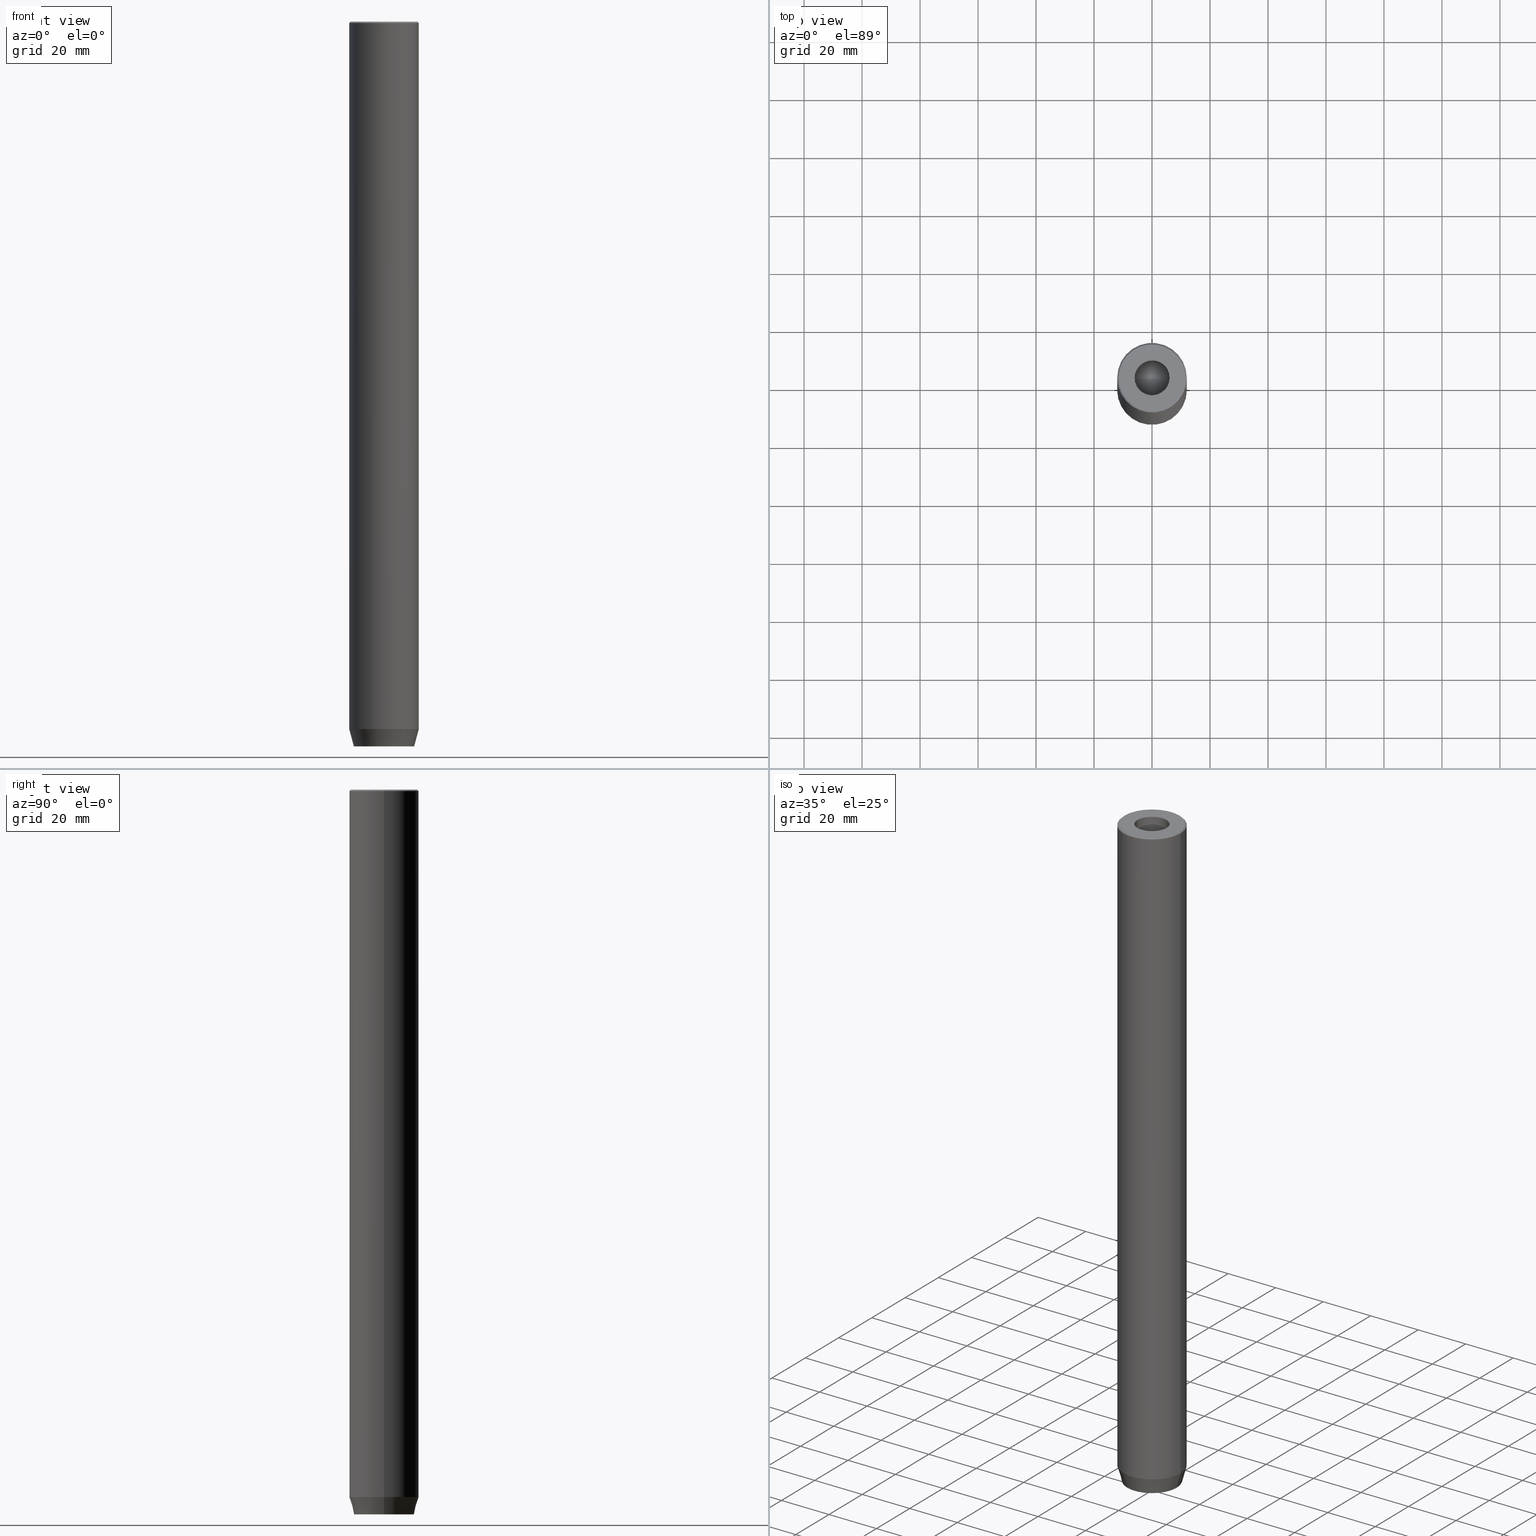
[diagram: canonical four-view strip — front | top / right | iso, engineering-drawing reading convention]
A machine part, canonical four-view strip (front | top / right | iso — engineering-drawing reading convention). The complete STEP part file that produces these views, byte-faithful:
ISO-10303-21;
HEADER;
FILE_DESCRIPTION (( 'STEP AP203' ),
    '1' );
FILE_NAME ('fc96.STEP',
    '2024-01-02T17:25:53',
    ( '' ),
    ( '' ),
    'SwSTEP 2.0',
    'SolidWorks 2019',
    '' );
FILE_SCHEMA (( 'CONFIG_CONTROL_DESIGN' ));
ENDSEC;

DATA;
#1 = APPLICATION_PROTOCOL_DEFINITION ( 'international standard', 'config_control_design', 1994, #552 ) ;
#2 = PLANE ( 'NONE',  #320 ) ;
#3 = EDGE_CURVE ( 'NONE', #21, #507, #478, .T. ) ;
#4 = DIRECTION ( 'NONE',  ( -0.000000000000000000, -0.000000000000000000, 1.000000000000000000 ) ) ;
#5 = VECTOR ( 'NONE', #132, 1000.000000000000000 ) ;
#6 = CARTESIAN_POINT ( 'NONE',  ( 0.000000000000000000, 0.000000000000000000, -244.0000000000000000 ) ) ;
#7 = DIRECTION ( 'NONE',  ( 1.000000000000000000, 0.000000000000000000, 0.000000000000000000 ) ) ;
#8 = DIRECTION ( 'NONE',  ( -0.000000000000000000, -0.000000000000000000, 1.000000000000000000 ) ) ;
#9 = DIRECTION ( 'NONE',  ( 1.000000000000000000, 0.000000000000000000, 0.000000000000000000 ) ) ;
#10 = LINE ( 'NONE', #543, #334 ) ;
#11 = LINE ( 'NONE', #150, #153 ) ;
#12 = ADVANCED_FACE ( 'NONE', ( #386, #379 ), #484, .T. ) ;
#13 = FACE_OUTER_BOUND ( 'NONE', #617, .T. ) ;
#14 = VERTEX_POINT ( 'NONE', #426 ) ;
#15 = DIRECTION ( 'NONE',  ( -0.2588190451025214056, 3.169619151431772953E-17, 0.9659258262890680902 ) ) ;
#16 = ADVANCED_FACE ( 'NONE', ( #285 ), #192, .F. ) ;
#17 = AXIS2_PLACEMENT_3D ( 'NONE', #446, #162, #455 ) ;
#18 = VECTOR ( 'NONE', #167, 999.9999999999998863 ) ;
#19 = ORIENTED_EDGE ( 'NONE', *, *, #500, .T. ) ;
#20 = CARTESIAN_POINT ( 'NONE',  ( 4.000000000000000000, -2.309401076758503368, -250.0000000000000000 ) ) ;
#21 = VERTEX_POINT ( 'NONE', #482 ) ;
#22 = DIRECTION ( 'NONE',  ( 1.000000000000000000, 0.000000000000000000, 0.000000000000000000 ) ) ;
#23 = ORIENTED_EDGE ( 'NONE', *, *, #633, .F. ) ;
#24 = EDGE_CURVE ( 'NONE', #406, #171, #44, .T. ) ;
#25 = AXIS2_PLACEMENT_3D ( 'NONE', #393, #111, #597 ) ;
#26 = AXIS2_PLACEMENT_3D ( 'NONE', #532, #288, #331 ) ;
#27 = VERTEX_POINT ( 'NONE', #374 ) ;
#28 = EDGE_CURVE ( 'NONE', #133, #460, #83, .T. ) ;
#29 = DIRECTION ( 'NONE',  ( -0.000000000000000000, -0.000000000000000000, -1.000000000000000000 ) ) ;
#30 = ORIENTED_EDGE ( 'NONE', *, *, #605, .T. ) ;
#31 = PERSON_AND_ORGANIZATION_ROLE ( 'classification_officer' ) ;
#32 = CARTESIAN_POINT ( 'NONE',  ( 4.000000000000000000, 2.309401076758504257, -250.0000000000000000 ) ) ;
#33 = LINE ( 'NONE', #465, #18 ) ;
#34 = ORIENTED_EDGE ( 'NONE', *, *, #115, .F. ) ;
#35 = DIRECTION ( 'NONE',  ( 1.000000000000000000, 0.000000000000000000, 0.000000000000000000 ) ) ;
#36 = CARTESIAN_POINT ( 'NONE',  ( -6.299999999999996270, 7.715274834628321433E-16, -0.2999999999999999889 ) ) ;
#37 = EDGE_LOOP ( 'NONE', ( #179, #274 ) ) ;
#38 = VECTOR ( 'NONE', #501, 1000.000000000000000 ) ;
#39 = ORIENTED_EDGE ( 'NONE', *, *, #118, .T. ) ;
#40 = CARTESIAN_POINT ( 'NONE',  ( 0.000000000000000000, 0.000000000000000000, -25.00000000000000000 ) ) ;
#41 = CARTESIAN_POINT ( 'NONE',  ( 2.000000000000000000, 3.464101615137755275, -244.1999999999999886 ) ) ;
#42 = ORIENTED_EDGE ( 'NONE', *, *, #407, .T. ) ;
#43 = DATE_AND_TIME ( #90, #347 ) ;
#44 = LINE ( 'NONE', #240, #610 ) ;
#45 = PERSON_AND_ORGANIZATION ( #442, #382 ) ;
#46 = DIRECTION ( 'NONE',  ( -0.000000000000000000, -0.000000000000000000, 1.000000000000000000 ) ) ;
#47 = AXIS2_PLACEMENT_3D ( 'NONE', #540, #57, #195 ) ;
#48 = CIRCLE ( 'NONE', #528, 6.299999999999996270 ) ;
#49 = VECTOR ( 'NONE', #343, 999.9999999999998863 ) ;
#50 = CARTESIAN_POINT ( 'NONE',  ( -6.299999999999996270, 7.715274834628322420E-16, 0.000000000000000000 ) ) ;
#51 = DIRECTION ( 'NONE',  ( -0.000000000000000000, -0.000000000000000000, 1.000000000000000000 ) ) ;
#52 = DIRECTION ( 'NONE',  ( -0.000000000000000000, -0.000000000000000000, 1.000000000000000000 ) ) ;
#53 = LINE ( 'NONE', #116, #66 ) ;
#54 = CARTESIAN_POINT ( 'NONE',  ( -4.000000000000000888, 1.502314598737159623E-15, -250.0000000000000000 ) ) ;
#55 = CIRCLE ( 'NONE', #412, 10.39230484541325872 ) ;
#56 = FACE_OUTER_BOUND ( 'NONE', #622, .T. ) ;
#57 = DIRECTION ( 'NONE',  ( 0.000000000000000000, 0.000000000000000000, -1.000000000000000000 ) ) ;
#58 = AXIS2_PLACEMENT_3D ( 'NONE', #294, #437, #348 ) ;
#59 =( NAMED_UNIT ( * ) SI_UNIT ( $, .STERADIAN. ) SOLID_ANGLE_UNIT ( ) );
#60 = DIRECTION ( 'NONE',  ( -0.000000000000000000, -0.000000000000000000, 1.000000000000000000 ) ) ;
#61 = FACE_OUTER_BOUND ( 'NONE', #474, .T. ) ;
#62 = DIRECTION ( 'NONE',  ( 0.000000000000000000, 0.000000000000000000, 1.000000000000000000 ) ) ;
#63 = ORIENTED_EDGE ( 'NONE', *, *, #403, .F. ) ;
#64 = FACE_OUTER_BOUND ( 'NONE', #627, .T. ) ;
#65 = ORIENTED_EDGE ( 'NONE', *, *, #261, .F. ) ;
#66 = VECTOR ( 'NONE', #260, 999.9999999999998863 ) ;
#67 = ORIENTED_EDGE ( 'NONE', *, *, #306, .F. ) ;
#68 = EDGE_CURVE ( 'NONE', #262, #27, #394, .T. ) ;
#69 = ORIENTED_EDGE ( 'NONE', *, *, #560, .F. ) ;
#70 = EDGE_LOOP ( 'NONE', ( #137, #176, #456, #363, #377, #127 ) ) ;
#71 = CARTESIAN_POINT ( 'NONE',  ( -4.000000000000000000, 2.309401076758504257, -244.1999999999999886 ) ) ;
#72 = ADVANCED_FACE ( 'NONE', ( #144 ), #519, .T. ) ;
#73 = VECTOR ( 'NONE', #345, 1000.000000000000000 ) ;
#74 = CARTESIAN_POINT ( 'NONE',  ( -4.000000000000000000, 2.309401076758504257, -250.0000000000000000 ) ) ;
#75 = VECTOR ( 'NONE', #445, 1000.000000000000000 ) ;
#76 = ORIENTED_EDGE ( 'NONE', *, *, #518, .T. ) ;
#77 = ADVANCED_FACE ( 'NONE', ( #246 ), #376, .T. ) ;
#78 = ORIENTED_EDGE ( 'NONE', *, *, #605, .F. ) ;
#79 = DIRECTION ( 'NONE',  ( 1.000000000000000000, 0.000000000000000000, 0.000000000000000000 ) ) ;
#80 = VERTEX_POINT ( 'NONE', #235 ) ;
#81 = CARTESIAN_POINT ( 'NONE',  ( 4.000000000000000000, 0.000000000000000000, -244.1999999999999886 ) ) ;
#82 = ADVANCED_FACE ( 'NONE', ( #337 ), #344, .F. ) ;
#83 = CIRCLE ( 'NONE', #467, 0.2999999999999999334 ) ;
#84 = EDGE_LOOP ( 'NONE', ( #559, #286, #570, #23, #530, #233 ) ) ;
#85 = CC_DESIGN_APPROVAL ( #526, ( #459 ) ) ;
#86 = FACE_OUTER_BOUND ( 'NONE', #371, .T. ) ;
#87 = CARTESIAN_POINT ( 'NONE',  ( 0.000000000000000000, 0.000000000000000000, 0.000000000000000000 ) ) ;
#88 = CC_DESIGN_PERSON_AND_ORGANIZATION_ASSIGNMENT ( #493, #196, ( #166 ) ) ;
#89 = ORIENTED_EDGE ( 'NONE', *, *, #177, .T. ) ;
#90 = CALENDAR_DATE ( 2024, 2, 1 ) ;
#91 = DIRECTION ( 'NONE',  ( 0.5000000000000000000, -0.8660254037844387076, 0.000000000000000000 ) ) ;
#92 = APPROVAL_STATUS ( 'not_yet_approved' ) ;
#93 = DIRECTION ( 'NONE',  ( -0.000000000000000000, -0.000000000000000000, 1.000000000000000000 ) ) ;
#94 = DIRECTION ( 'NONE',  ( 1.000000000000000000, 0.000000000000000000, -0.000000000000000000 ) ) ;
#95 = ORIENTED_EDGE ( 'NONE', *, *, #338, .T. ) ;
#96 = CALENDAR_DATE ( 2024, 2, 1 ) ;
#97 = DIRECTION ( 'NONE',  ( 0.000000000000000000, 0.000000000000000000, -1.000000000000000000 ) ) ;
#98 = APPLICATION_PROTOCOL_DEFINITION ( 'international standard', 'config_control_design', 1994, #425 ) ;
#99 = DIRECTION ( 'NONE',  ( -1.000000000000000000, 3.755786496842898071E-16, 0.000000000000000000 ) ) ;
#100 = VECTOR ( 'NONE', #494, 1000.000000000000000 ) ;
#101 = CIRCLE ( 'NONE', #254, 5.999999999999995559 ) ;
#102 = DIRECTION ( 'NONE',  ( 1.000000000000000000, 0.000000000000000000, 0.000000000000000000 ) ) ;
#103 = CARTESIAN_POINT ( 'NONE',  ( -11.50000000000000888, 0.000000000000000000, 0.000000000000000000 ) ) ;
#104 = CARTESIAN_POINT ( 'NONE',  ( -4.000000000000001776, -2.309401076758503368, -250.0000000000000000 ) ) ;
#105 = CYLINDRICAL_SURFACE ( 'NONE', #476, 12.00000000000000000 ) ;
#106 = FACE_OUTER_BOUND ( 'NONE', #470, .T. ) ;
#107 = LINE ( 'NONE', #258, #73 ) ;
#108 = CARTESIAN_POINT ( 'NONE',  ( -4.000000000000000888, 1.502314598737159623E-15, -244.1999999999999886 ) ) ;
#109 = AXIS2_PLACEMENT_3D ( 'NONE', #296, #204, #307 ) ;
#110 = FACE_OUTER_BOUND ( 'NONE', #606, .T. ) ;
#111 = DIRECTION ( 'NONE',  ( 0.000000000000000000, 0.000000000000000000, -1.000000000000000000 ) ) ;
#112 = CC_DESIGN_APPROVAL ( #613, ( #490 ) ) ;
#113 = EDGE_CURVE ( 'NONE', #460, #234, #241, .T. ) ;
#114 = CARTESIAN_POINT ( 'NONE',  ( 4.000000000000000000, -2.309401076758503368, -244.1999999999999886 ) ) ;
#115 = EDGE_CURVE ( 'NONE', #171, #534, #441, .T. ) ;
#116 = CARTESIAN_POINT ( 'NONE',  ( 2.000000000000000000, 3.464101615137755275, -250.0000000000000000 ) ) ;
#117 = ORIENTED_EDGE ( 'NONE', *, *, #633, .T. ) ;
#118 = EDGE_CURVE ( 'NONE', #561, #362, #146, .T. ) ;
#119 = ORIENTED_EDGE ( 'NONE', *, *, #594, .T. ) ;
#120 = EDGE_CURVE ( 'NONE', #327, #133, #449, .T. ) ;
#121 = AXIS2_PLACEMENT_3D ( 'NONE', #41, #431, #325 ) ;
#122 = AXIS2_PLACEMENT_3D ( 'NONE', #447, #4, #598 ) ;
#123 = ORIENTED_EDGE ( 'NONE', *, *, #316, .T. ) ;
#124 = ORIENTED_EDGE ( 'NONE', *, *, #324, .T. ) ;
#125 = LINE ( 'NONE', #369, #163 ) ;
#126 = APPROVAL ( #295, 'NEUR�EN�' ) ;
#127 = ORIENTED_EDGE ( 'NONE', *, *, #453, .T. ) ;
#128 = VECTOR ( 'NONE', #502, 999.9999999999998863 ) ;
#129 = TOROIDAL_SURFACE ( 'NONE', #26, 6.299999999999996270, 0.2999999999999999889 ) ;
#130 = ORIENTED_EDGE ( 'NONE', *, *, #410, .F. ) ;
#131 = CARTESIAN_POINT ( 'NONE',  ( 0.000000000000000000, 0.000000000000000000, 0.000000000000000000 ) ) ;
#132 = DIRECTION ( 'NONE',  ( 0.2588190451025214056, 0.000000000000000000, 0.9659258262890680902 ) ) ;
#133 = VERTEX_POINT ( 'NONE', #50 ) ;
#134 = DIRECTION ( 'NONE',  ( 1.000000000000000000, 0.000000000000000000, 0.000000000000000000 ) ) ;
#135 = ADVANCED_FACE ( 'NONE', ( #636 ), #529, .F. ) ;
#136 = CARTESIAN_POINT ( 'NONE',  ( -1.999999999999999112, -3.464101615137755275, -244.1999999999999886 ) ) ;
#137 = ORIENTED_EDGE ( 'NONE', *, *, #201, .T. ) ;
#138 = DATE_TIME_ROLE ( 'classification_date' ) ;
#139 = CARTESIAN_POINT ( 'NONE',  ( 0.000000000000000000, 0.000000000000000000, -244.1999999999999886 ) ) ;
#140 = CONICAL_SURFACE ( 'NONE', #358, 12.00000000000000000, 0.2617993877991501295 ) ;
#141 = ORIENTED_EDGE ( 'NONE', *, *, #387, .T. ) ;
#142 =( GEOMETRIC_REPRESENTATION_CONTEXT ( 3 ) GLOBAL_UNCERTAINTY_ASSIGNED_CONTEXT ( ( #595 ) ) GLOBAL_UNIT_ASSIGNED_CONTEXT ( ( #310, #197, #59 ) ) REPRESENTATION_CONTEXT ( 'NONE', 'WORKASPACE' ) );
#143 = MECHANICAL_CONTEXT ( 'NONE', #552, 'mechanical' ) ;
#144 = FACE_OUTER_BOUND ( 'NONE', #231, .T. ) ;
#145 = ORIENTED_EDGE ( 'NONE', *, *, #518, .F. ) ;
#146 = LINE ( 'NONE', #289, #5 ) ;
#147 = DATE_AND_TIME ( #637, #499 ) ;
#148 = CC_DESIGN_DATE_AND_TIME_ASSIGNMENT ( #238, #138, ( #459 ) ) ;
#149 = LINE ( 'NONE', #248, #75 ) ;
#150 = CARTESIAN_POINT ( 'NONE',  ( 1.999999999999999556, -3.464101615137754386, -244.1999999999999886 ) ) ;
#151 = EDGE_CURVE ( 'NONE', #362, #564, #569, .T. ) ;
#152 = SECURITY_CLASSIFICATION_LEVEL ( 'unclassified' ) ;
#153 = VECTOR ( 'NONE', #341, 1000.000000000000227 ) ;
#154 = AXIS2_PLACEMENT_3D ( 'NONE', #392, #51, #588 ) ;
#155 = CARTESIAN_POINT ( 'NONE',  ( 2.000000000000000000, 3.464101615137755275, -244.1999999999999886 ) ) ;
#156 = DIRECTION ( 'NONE',  ( 1.000000000000000000, 0.000000000000000000, 0.000000000000000000 ) ) ;
#157 = LINE ( 'NONE', #354, #49 ) ;
#158 = LINE ( 'NONE', #305, #207 ) ;
#159 = CARTESIAN_POINT ( 'NONE',  ( -4.000000000000000000, 2.309401076758504257, -244.1999999999999886 ) ) ;
#160 = CYLINDRICAL_SURFACE ( 'NONE', #364, 5.999999999999996447 ) ;
#161 = CONICAL_SURFACE ( 'NONE', #25, 11.50000000000000888, 0.7853981633974344012 ) ;
#162 = DIRECTION ( 'NONE',  ( -0.000000000000000000, -0.000000000000000000, 1.000000000000000000 ) ) ;
#163 = VECTOR ( 'NONE', #29, 1000.000000000000000 ) ;
#164 = ORIENTED_EDGE ( 'NONE', *, *, #319, .T. ) ;
#165 = ORIENTED_EDGE ( 'NONE', *, *, #315, .T. ) ;
#166 = PRODUCT_DEFINITION ( 'NEZN�M�', '', #490, #255 ) ;
#167 = DIRECTION ( 'NONE',  ( 0.7071067811865376918, 8.659560562354813296E-17, -0.7071067811865574537 ) ) ;
#168 = EDGE_LOOP ( 'NONE', ( #409, #19, #483, #145 ) ) ;
#169 = VECTOR ( 'NONE', #553, 1000.000000000000000 ) ;
#170 = ORIENTED_EDGE ( 'NONE', *, *, #151, .F. ) ;
#171 = VERTEX_POINT ( 'NONE', #451 ) ;
#172 = ORIENTED_EDGE ( 'NONE', *, *, #500, .F. ) ;
#173 = AXIS2_PLACEMENT_3D ( 'NONE', #210, #250, #200 ) ;
#174 = AXIS2_PLACEMENT_3D ( 'NONE', #452, #62, #444 ) ;
#175 = DIRECTION ( 'NONE',  ( 0.000000000000000000, -1.000000000000000000, 0.000000000000000000 ) ) ;
#176 = ORIENTED_EDGE ( 'NONE', *, *, #549, .T. ) ;
#177 = EDGE_CURVE ( 'NONE', #427, #460, #107, .T. ) ;
#178 = DIRECTION ( 'NONE',  ( -0.000000000000000000, -0.000000000000000000, -1.000000000000000000 ) ) ;
#179 = ORIENTED_EDGE ( 'NONE', *, *, #560, .T. ) ;
#180 = FACE_OUTER_BOUND ( 'NONE', #504, .T. ) ;
#181 = ADVANCED_FACE ( 'NONE', ( #558 ), #160, .F. ) ;
#182 = DIRECTION ( 'NONE',  ( 1.224646799147353207E-16, 1.000000000000000000, 0.000000000000000000 ) ) ;
#183 = ORIENTED_EDGE ( 'NONE', *, *, #118, .F. ) ;
#184 = DIRECTION ( 'NONE',  ( 0.000000000000000000, 0.000000000000000000, -1.000000000000000000 ) ) ;
#185 = MANIFOLD_SOLID_BREP ( 'Odebrat vysunut�m1', #253 ) ;
#186 = PRODUCT_DEFINITION_SHAPE ( 'NONE', 'NONE',  #166 ) ;
#187 = ORIENTED_EDGE ( 'NONE', *, *, #201, .F. ) ;
#188 = AXIS2_PLACEMENT_3D ( 'NONE', #349, #414, #102 ) ;
#189 = DIRECTION ( 'NONE',  ( 1.000000000000000000, 0.000000000000000000, 0.000000000000000000 ) ) ;
#190 = ADVANCED_FACE ( 'NONE', ( #301, #64 ), #506, .T. ) ;
#191 = FACE_OUTER_BOUND ( 'NONE', #361, .T. ) ;
#192 = PLANE ( 'NONE',  #263 ) ;
#193 = COORDINATED_UNIVERSAL_TIME_OFFSET ( 1, 0, .AHEAD. ) ;
#194 = CARTESIAN_POINT ( 'NONE',  ( 5.999999999999995559, 0.000000000000000000, -25.00000000000000000 ) ) ;
#195 = DIRECTION ( 'NONE',  ( -1.000000000000000000, 0.000000000000000000, -0.000000000000000000 ) ) ;
#196 = PERSON_AND_ORGANIZATION_ROLE ( 'creator' ) ;
#197 =( NAMED_UNIT ( * ) PLANE_ANGLE_UNIT ( ) SI_UNIT ( $, .RADIAN. ) );
#198 = CARTESIAN_POINT ( 'NONE',  ( 8.673617379884035472E-16, -4.618802153517004960, -244.1999999999999886 ) ) ;
#199 = CARTESIAN_POINT ( 'NONE',  ( -4.000000000000000888, 1.502314598737159623E-15, -244.1999999999999886 ) ) ;
#200 = DIRECTION ( 'NONE',  ( 0.000000000000000000, 0.000000000000000000, -1.000000000000000000 ) ) ;
#201 = EDGE_CURVE ( 'NONE', #479, #14, #356, .T. ) ;
#202 = CYLINDRICAL_SURFACE ( 'NONE', #581, 12.00000000000000000 ) ;
#203 = CARTESIAN_POINT ( 'NONE',  ( 0.000000000000000000, 0.000000000000000000, 0.000000000000000000 ) ) ;
#204 = DIRECTION ( 'NONE',  ( -0.4999999999999999445, 0.8660254037844387076, 0.000000000000000000 ) ) ;
#205 = ADVANCED_FACE ( 'NONE', ( #601 ), #105, .T. ) ;
#206 = VERTEX_POINT ( 'NONE', #448 ) ;
#207 = VECTOR ( 'NONE', #589, 1000.000000000000000 ) ;
#208 = CARTESIAN_POINT ( 'NONE',  ( 4.000000000000000000, 2.309401076758504257, -244.1999999999999886 ) ) ;
#209 = VECTOR ( 'NONE', #264, 999.9999999999998863 ) ;
#210 = CARTESIAN_POINT ( 'NONE',  ( 6.299999999999996270, 0.000000000000000000, -0.2999999999999999889 ) ) ;
#211 = CC_DESIGN_PERSON_AND_ORGANIZATION_ASSIGNMENT ( #503, #31, ( #459 ) ) ;
#212 = ORIENTED_EDGE ( 'NONE', *, *, #410, .T. ) ;
#213 = EDGE_CURVE ( 'NONE', #206, #564, #492, .T. ) ;
#214 = VERTEX_POINT ( 'NONE', #103 ) ;
#215 = CARTESIAN_POINT ( 'NONE',  ( 0.000000000000000000, 0.000000000000000000, -0.2999999999999999889 ) ) ;
#216 = ORIENTED_EDGE ( 'NONE', *, *, #28, .F. ) ;
#217 = FACE_OUTER_BOUND ( 'NONE', #373, .T. ) ;
#218 = AXIS2_PLACEMENT_3D ( 'NONE', #360, #52, #9 ) ;
#219 = CARTESIAN_POINT ( 'NONE',  ( 0.000000000000000000, 0.000000000000000000, -250.0000000000000000 ) ) ;
#220 = ORIENTED_EDGE ( 'NONE', *, *, #316, .F. ) ;
#221 = ADVANCED_FACE ( 'NONE', ( #400 ), #140, .T. ) ;
#222 = LINE ( 'NONE', #568, #265 ) ;
#223 = ORIENTED_EDGE ( 'NONE', *, *, #239, .T. ) ;
#224 = DIRECTION ( 'NONE',  ( 1.000000000000000000, 0.000000000000000000, 0.000000000000000000 ) ) ;
#225 = VERTEX_POINT ( 'NONE', #402 ) ;
#226 = CARTESIAN_POINT ( 'NONE',  ( 0.000000000000000000, 0.000000000000000000, -0.5000000000000056621 ) ) ;
#227 = CARTESIAN_POINT ( 'NONE',  ( 0.000000000000000000, 0.000000000000000000, 0.000000000000000000 ) ) ;
#228 = AXIS2_PLACEMENT_3D ( 'NONE', #524, #328, #279 ) ;
#229 = APPROVAL_PERSON_ORGANIZATION ( #340, #613, #535 ) ;
#230 = ADVANCED_FACE ( 'NONE', ( #249 ), #554, .F. ) ;
#231 = EDGE_LOOP ( 'NONE', ( #78, #69, #521, #612 ) ) ;
#232 = LINE ( 'NONE', #423, #591 ) ;
#233 = ORIENTED_EDGE ( 'NONE', *, *, #251, .F. ) ;
#234 = VERTEX_POINT ( 'NONE', #495 ) ;
#235 = CARTESIAN_POINT ( 'NONE',  ( 11.50000000000000888, 1.438959988998140752E-15, 0.000000000000000000 ) ) ;
#236 = ORIENTED_EDGE ( 'NONE', *, *, #239, .F. ) ;
#237 = DATE_TIME_ROLE ( 'creation_date' ) ;
#238 = DATE_AND_TIME ( #439, #365 ) ;
#239 = EDGE_CURVE ( 'NONE', #564, #362, #293, .T. ) ;
#240 = CARTESIAN_POINT ( 'NONE',  ( -1.999999999999999112, -3.464101615137755275, -244.1999999999999886 ) ) ;
#241 = CIRCLE ( 'NONE', #346, 5.999999999999996447 ) ;
#242 = CC_DESIGN_APPROVAL ( #126, ( #166 ) ) ;
#243 = PERSON_AND_ORGANIZATION_ROLE ( 'creator' ) ;
#244 = COORDINATED_UNIVERSAL_TIME_OFFSET ( 1, 0, .AHEAD. ) ;
#245 = CARTESIAN_POINT ( 'NONE',  ( 0.000000000000000000, 0.000000000000000000, -244.0000000000000000 ) ) ;
#246 = FACE_OUTER_BOUND ( 'NONE', #70, .T. ) ;
#247 = DIRECTION ( 'NONE',  ( -3.755786496842898071E-16, -1.000000000000000000, 0.000000000000000000 ) ) ;
#248 = CARTESIAN_POINT ( 'NONE',  ( 4.000000000000000000, 0.000000000000000000, -244.1999999999999886 ) ) ;
#249 = FACE_OUTER_BOUND ( 'NONE', #415, .T. ) ;
#250 = DIRECTION ( 'NONE',  ( 0.000000000000000000, -1.000000000000000000, 0.000000000000000000 ) ) ;
#251 = EDGE_CURVE ( 'NONE', #515, #417, #53, .T. ) ;
#252 = PRODUCT_RELATED_PRODUCT_CATEGORY ( 'detail', '', ( #282 ) ) ;
#253 = CLOSED_SHELL ( 'NONE', ( #429, #181, #537, #266, #505, #205, #190, #12, #516, #221, #72, #350, #380, #609, #230, #357, #82, #308, #16, #135, #77 ) ) ;
#254 = AXIS2_PLACEMENT_3D ( 'NONE', #40, #93, #430 ) ;
#255 = DESIGN_CONTEXT ( 'detailed design', #425, 'design' ) ;
#256 = CARTESIAN_POINT ( 'NONE',  ( -12.00000000000000000, 1.469576158976823947E-15, -244.0000000000000000 ) ) ;
#257 = DIRECTION ( 'NONE',  ( -0.8660254037844387076, 0.4999999999999997224, 0.000000000000000000 ) ) ;
#258 = CARTESIAN_POINT ( 'NONE',  ( -5.999999999999996447, 7.347880794884115792E-16, 0.000000000000000000 ) ) ;
#259 = ORIENTED_EDGE ( 'NONE', *, *, #461, .T. ) ;
#260 = DIRECTION ( 'NONE',  ( 0.8660254037844387076, -0.4999999999999999445, 0.000000000000000000 ) ) ;
#261 = EDGE_CURVE ( 'NONE', #80, #214, #420, .T. ) ;
#262 = VERTEX_POINT ( 'NONE', #639 ) ;
#263 = AXIS2_PLACEMENT_3D ( 'NONE', #81, #94, #586 ) ;
#264 = DIRECTION ( 'NONE',  ( -0.7071067811865376918, 0.000000000000000000, -0.7071067811865574537 ) ) ;
#265 = VECTOR ( 'NONE', #418, 1000.000000000000227 ) ;
#266 = ADVANCED_FACE ( 'NONE', ( #61 ), #161, .T. ) ;
#267 = ORIENTED_EDGE ( 'NONE', *, *, #213, .F. ) ;
#268 = EDGE_CURVE ( 'NONE', #327, #234, #603, .T. ) ;
#269 = ORIENTED_EDGE ( 'NONE', *, *, #315, .F. ) ;
#270 = CARTESIAN_POINT ( 'NONE',  ( -11.50000000000000888, 0.000000000000000000, 0.000000000000000000 ) ) ;
#271 = ORIENTED_EDGE ( 'NONE', *, *, #298, .F. ) ;
#272 = VECTOR ( 'NONE', #399, 1000.000000000000000 ) ;
#273 = VECTOR ( 'NONE', #401, 1000.000000000000000 ) ;
#274 = ORIENTED_EDGE ( 'NONE', *, *, #261, .T. ) ;
#275 = ORIENTED_EDGE ( 'NONE', *, *, #387, .F. ) ;
#276 = DIRECTION ( 'NONE',  ( 0.8660254037844385966, 0.4999999999999999445, 0.000000000000000000 ) ) ;
#277 = DIRECTION ( 'NONE',  ( -0.8660254037844387076, 0.4999999999999997224, 0.000000000000000000 ) ) ;
#278 = ORIENTED_EDGE ( 'NONE', *, *, #68, .F. ) ;
#279 = DIRECTION ( 'NONE',  ( 1.000000000000000000, 0.000000000000000000, 0.000000000000000000 ) ) ;
#280 = DIRECTION ( 'NONE',  ( 1.000000000000000000, 0.000000000000000000, 0.000000000000000000 ) ) ;
#281 = VECTOR ( 'NONE', #178, 1000.000000000000000 ) ;
#282 = PRODUCT ( 'fc96', 'fc96', '', ( #143 ) ) ;
#283 = ORIENTED_EDGE ( 'NONE', *, *, #251, .T. ) ;
#284 = CARTESIAN_POINT ( 'NONE',  ( 1.999999999999999556, -3.464101615137754386, -244.1999999999999886 ) ) ;
#285 = FACE_OUTER_BOUND ( 'NONE', #575, .T. ) ;
#286 = ORIENTED_EDGE ( 'NONE', *, *, #407, .F. ) ;
#287 = LINE ( 'NONE', #472, #580 ) ;
#288 = DIRECTION ( 'NONE',  ( -0.000000000000000000, -0.000000000000000000, 1.000000000000000000 ) ) ;
#289 = CARTESIAN_POINT ( 'NONE',  ( 12.00000000000000000, 0.000000000000000000, -244.0000000000000000 ) ) ;
#290 = ORIENTED_EDGE ( 'NONE', *, *, #549, .F. ) ;
#291 = APPROVAL_DATE_TIME ( #590, #613 ) ;
#292 = DIRECTION ( 'NONE',  ( 0.000000000000000000, -0.000000000000000000, 1.000000000000000000 ) ) ;
#293 = CIRCLE ( 'NONE', #218, 12.00000000000000000 ) ;
#294 = CARTESIAN_POINT ( 'NONE',  ( 0.000000000000000000, 0.000000000000000000, 0.000000000000000000 ) ) ;
#295 = APPROVAL_STATUS ( 'not_yet_approved' ) ;
#296 = CARTESIAN_POINT ( 'NONE',  ( -2.000000000000000000, 3.464101615137755275, -244.1999999999999886 ) ) ;
#297 = DIRECTION ( 'NONE',  ( -0.000000000000000000, -0.000000000000000000, 1.000000000000000000 ) ) ;
#298 = EDGE_CURVE ( 'NONE', #21, #427, #158, .T. ) ;
#299 = PERSON_AND_ORGANIZATION_ROLE ( 'design_owner' ) ;
#300 = LINE ( 'NONE', #54, #273 ) ;
#301 = FACE_BOUND ( 'NONE', #84, .T. ) ;
#302 = CARTESIAN_POINT ( 'NONE',  ( 12.00000000000000000, 0.000000000000000000, -244.0000000000000000 ) ) ;
#303 = CIRCLE ( 'NONE', #372, 12.00000000000000000 ) ;
#304 = CARTESIAN_POINT ( 'NONE',  ( 0.000000000000000000, 0.000000000000000000, 0.000000000000000000 ) ) ;
#305 = CARTESIAN_POINT ( 'NONE',  ( -5.999999999999995559, 7.347880794884114806E-16, -25.00000000000000000 ) ) ;
#306 = EDGE_CURVE ( 'NONE', #375, #406, #11, .T. ) ;
#307 = DIRECTION ( 'NONE',  ( -0.8660254037844385966, -0.4999999999999998890, 0.000000000000000000 ) ) ;
#308 = ADVANCED_FACE ( 'NONE', ( #86 ), #531, .F. ) ;
#309 = ORIENTED_EDGE ( 'NONE', *, *, #443, .F. ) ;
#310 =( LENGTH_UNIT ( ) NAMED_UNIT ( * ) SI_UNIT ( .MILLI., .METRE. ) );
#311 = ORIENTED_EDGE ( 'NONE', *, *, #120, .T. ) ;
#312 = CONICAL_SURFACE ( 'NONE', #555, 5.999999999999995559, 1.029744258676653423 ) ;
#313 = CARTESIAN_POINT ( 'NONE',  ( 10.39230484541325872, 0.000000000000000000, -250.0000000000000000 ) ) ;
#314 = ORIENTED_EDGE ( 'NONE', *, *, #548, .F. ) ;
#315 = EDGE_CURVE ( 'NONE', #384, #417, #287, .T. ) ;
#316 = EDGE_CURVE ( 'NONE', #561, #206, #55, .T. ) ;
#317 = ORIENTED_EDGE ( 'NONE', *, *, #113, .T. ) ;
#318 = ORIENTED_EDGE ( 'NONE', *, *, #3, .F. ) ;
#319 = EDGE_CURVE ( 'NONE', #27, #262, #303, .T. ) ;
#320 = AXIS2_PLACEMENT_3D ( 'NONE', #108, #99, #247 ) ;
#321 = APPROVAL_PERSON_ORGANIZATION ( #624, #526, #378 ) ;
#322 = VECTOR ( 'NONE', #508, 1000.000000000000000 ) ;
#323 = ORIENTED_EDGE ( 'NONE', *, *, #213, .T. ) ;
#324 = EDGE_CURVE ( 'NONE', #234, #460, #381, .T. ) ;
#325 = DIRECTION ( 'NONE',  ( -0.8660254037844385966, 0.4999999999999998890, 0.000000000000000000 ) ) ;
#326 = FACE_OUTER_BOUND ( 'NONE', #471, .T. ) ;
#327 = VERTEX_POINT ( 'NONE', #475 ) ;
#328 = DIRECTION ( 'NONE',  ( -0.000000000000000000, -0.000000000000000000, 1.000000000000000000 ) ) ;
#329 = CARTESIAN_POINT ( 'NONE',  ( 5.999999999999995559, 0.000000000000000000, -25.00000000000000000 ) ) ;
#330 = ORIENTED_EDGE ( 'NONE', *, *, #3, .T. ) ;
#331 = DIRECTION ( 'NONE',  ( 1.000000000000000000, 0.000000000000000000, 0.000000000000000000 ) ) ;
#332 = DIRECTION ( 'NONE',  ( -0.000000000000000000, -0.000000000000000000, 1.000000000000000000 ) ) ;
#333 = AXIS2_PLACEMENT_3D ( 'NONE', #227, #632, #621 ) ;
#334 = VECTOR ( 'NONE', #635, 1000.000000000000000 ) ;
#335 = ORIENTED_EDGE ( 'NONE', *, *, #630, .F. ) ;
#336 = LINE ( 'NONE', #199, #38 ) ;
#337 = FACE_OUTER_BOUND ( 'NONE', #434, .T. ) ;
#338 = EDGE_CURVE ( 'NONE', #406, #225, #232, .T. ) ;
#339 = ORIENTED_EDGE ( 'NONE', *, *, #324, .F. ) ;
#340 = PERSON_AND_ORGANIZATION ( #442, #382 ) ;
#341 = DIRECTION ( 'NONE',  ( -0.8660254037844385966, -0.4999999999999998890, 0.000000000000000000 ) ) ;
#342 = CALENDAR_DATE ( 2024, 2, 1 ) ;
#343 = DIRECTION ( 'NONE',  ( 0.8660254037844387076, 0.4999999999999999445, 0.000000000000000000 ) ) ;
#344 = PLANE ( 'NONE',  #498 ) ;
#345 = DIRECTION ( 'NONE',  ( -0.000000000000000000, -0.000000000000000000, 1.000000000000000000 ) ) ;
#346 = AXIS2_PLACEMENT_3D ( 'NONE', #525, #332, #189 ) ;
#347 = LOCAL_TIME ( 18, 25, 53.00000000000000000, #193 ) ;
#348 = DIRECTION ( 'NONE',  ( 1.000000000000000000, 0.000000000000000000, 0.000000000000000000 ) ) ;
#349 = CARTESIAN_POINT ( 'NONE',  ( 0.000000000000000000, 0.000000000000000000, 0.000000000000000000 ) ) ;
#350 = ADVANCED_FACE ( 'NONE', ( #180 ), #312, .F. ) ;
#351 = EDGE_CURVE ( 'NONE', #375, #419, #557, .T. ) ;
#352 = CARTESIAN_POINT ( 'NONE',  ( -5.999999999999996447, 7.347880794884115792E-16, -0.2999999999999999889 ) ) ;
#353 = DIRECTION ( 'NONE',  ( -0.000000000000000000, -0.000000000000000000, 1.000000000000000000 ) ) ;
#354 = CARTESIAN_POINT ( 'NONE',  ( -2.000000000000000000, 3.464101615137755275, -250.0000000000000000 ) ) ;
#355 = DIRECTION ( 'NONE',  ( -0.000000000000000000, -0.000000000000000000, 1.000000000000000000 ) ) ;
#356 = LINE ( 'NONE', #398, #128 ) ;
#357 = ADVANCED_FACE ( 'NONE', ( #13 ), #2, .F. ) ;
#358 = AXIS2_PLACEMENT_3D ( 'NONE', #6, #297, #547 ) ;
#359 = AXIS2_PLACEMENT_3D ( 'NONE', #219, #469, #22 ) ;
#360 = CARTESIAN_POINT ( 'NONE',  ( 0.000000000000000000, 0.000000000000000000, -244.0000000000000000 ) ) ;
#361 = EDGE_LOOP ( 'NONE', ( #318, #607, #608 ) ) ;
#362 = VERTEX_POINT ( 'NONE', #302 ) ;
#363 = ORIENTED_EDGE ( 'NONE', *, *, #306, .T. ) ;
#364 = AXIS2_PLACEMENT_3D ( 'NONE', #203, #497, #156 ) ;
#365 = LOCAL_TIME ( 18, 25, 53.00000000000000000, #244 ) ;
#366 = CC_DESIGN_PERSON_AND_ORGANIZATION_ASSIGNMENT ( #545, #299, ( #282 ) ) ;
#367 = LINE ( 'NONE', #513, #631 ) ;
#368 = ORIENTED_EDGE ( 'NONE', *, *, #338, .F. ) ;
#369 = CARTESIAN_POINT ( 'NONE',  ( 2.168404344971008868E-16, 4.618802153517005848, -244.1999999999999886 ) ) ;
#370 = ORIENTED_EDGE ( 'NONE', *, *, #403, .T. ) ;
#371 = EDGE_LOOP ( 'NONE', ( #117, #368, #67, #578 ) ) ;
#372 = AXIS2_PLACEMENT_3D ( 'NONE', #226, #573, #134 ) ;
#373 = EDGE_LOOP ( 'NONE', ( #567, #432, #339, #422 ) ) ;
#374 = CARTESIAN_POINT ( 'NONE',  ( 12.00000000000000000, 0.000000000000000000, -0.5000000000000056621 ) ) ;
#375 = VERTEX_POINT ( 'NONE', #638 ) ;
#376 = PLANE ( 'NONE',  #618 ) ;
#377 = ORIENTED_EDGE ( 'NONE', *, *, #24, .T. ) ;
#378 = APPROVAL_ROLE ( '' ) ;
#379 = FACE_OUTER_BOUND ( 'NONE', #37, .T. ) ;
#380 = ADVANCED_FACE ( 'NONE', ( #106 ), #391, .F. ) ;
#381 = CIRCLE ( 'NONE', #228, 5.999999999999996447 ) ;
#382 = ORGANIZATION ( 'NEUR�EN�', 'NEUR�EN�', '' ) ;
#383 = ADVANCED_BREP_SHAPE_REPRESENTATION ( 'fc96', ( #185, #174 ), #142 ) ;
#384 = VERTEX_POINT ( 'NONE', #208 ) ;
#385 = APPROVAL_DATE_TIME ( #424, #526 ) ;
#386 = FACE_BOUND ( 'NONE', #625, .T. ) ;
#387 = EDGE_CURVE ( 'NONE', #507, #234, #542, .T. ) ;
#388 = APPROVAL_DATE_TIME ( #147, #126 ) ;
#389 = DIRECTION ( 'NONE',  ( 0.000000000000000000, 0.000000000000000000, -1.000000000000000000 ) ) ;
#390 = COORDINATED_UNIVERSAL_TIME_OFFSET ( 1, 0, .AHEAD. ) ;
#391 = CYLINDRICAL_SURFACE ( 'NONE', #188, 5.999999999999996447 ) ;
#392 = CARTESIAN_POINT ( 'NONE',  ( 0.000000000000000000, 0.000000000000000000, -25.00000000000000000 ) ) ;
#393 = CARTESIAN_POINT ( 'NONE',  ( 0.000000000000000000, 0.000000000000000000, 0.000000000000000000 ) ) ;
#394 = CIRCLE ( 'NONE', #458, 12.00000000000000000 ) ;
#395 = VECTOR ( 'NONE', #257, 1000.000000000000114 ) ;
#396 = CARTESIAN_POINT ( 'NONE',  ( 5.999999999999996447, 0.000000000000000000, 0.000000000000000000 ) ) ;
#397 = CARTESIAN_POINT ( 'NONE',  ( -1.999999999999999112, -3.464101615137755275, -250.0000000000000000 ) ) ;
#398 = CARTESIAN_POINT ( 'NONE',  ( -2.000000000000000000, 3.464101615137755275, -244.1999999999999886 ) ) ;
#399 = DIRECTION ( 'NONE',  ( -0.000000000000000000, -0.000000000000000000, -1.000000000000000000 ) ) ;
#400 = FACE_OUTER_BOUND ( 'NONE', #463, .T. ) ;
#401 = DIRECTION ( 'NONE',  ( 3.755786496842898071E-16, 1.000000000000000000, 0.000000000000000000 ) ) ;
#402 = CARTESIAN_POINT ( 'NONE',  ( 8.673617379884035472E-16, -4.618802153517004960, -250.0000000000000000 ) ) ;
#403 = EDGE_CURVE ( 'NONE', #507, #427, #620, .T. ) ;
#404 = CC_DESIGN_DATE_AND_TIME_ASSIGNMENT ( #43, #237, ( #166 ) ) ;
#405 = LOCAL_TIME ( 18, 25, 53.00000000000000000, #628 ) ;
#406 = VERTEX_POINT ( 'NONE', #198 ) ;
#407 = EDGE_CURVE ( 'NONE', #534, #619, #300, .T. ) ;
#408 = ORIENTED_EDGE ( 'NONE', *, *, #416, .F. ) ;
#409 = ORIENTED_EDGE ( 'NONE', *, *, #151, .T. ) ;
#410 = EDGE_CURVE ( 'NONE', #479, #619, #551, .T. ) ;
#411 = ORIENTED_EDGE ( 'NONE', *, *, #435, .T. ) ;
#412 = AXIS2_PLACEMENT_3D ( 'NONE', #486, #46, #35 ) ;
#413 = AXIS2_PLACEMENT_3D ( 'NONE', #215, #614, #224 ) ;
#414 = DIRECTION ( 'NONE',  ( -0.000000000000000000, -0.000000000000000000, 1.000000000000000000 ) ) ;
#415 = EDGE_LOOP ( 'NONE', ( #512, #335, #187, #212 ) ) ;
#416 = EDGE_CURVE ( 'NONE', #214, #262, #571, .T. ) ;
#417 = VERTEX_POINT ( 'NONE', #32 ) ;
#418 = DIRECTION ( 'NONE',  ( -0.8660254037844385966, -0.4999999999999998890, 0.000000000000000000 ) ) ;
#419 = VERTEX_POINT ( 'NONE', #20 ) ;
#420 = CIRCLE ( 'NONE', #17, 11.50000000000000888 ) ;
#421 = DIRECTION ( 'NONE',  ( -0.4999999999999998335, -0.8660254037844388186, 0.000000000000000000 ) ) ;
#422 = ORIENTED_EDGE ( 'NONE', *, *, #268, .F. ) ;
#423 = CARTESIAN_POINT ( 'NONE',  ( 8.673617379884035472E-16, -4.618802153517004960, -244.1999999999999886 ) ) ;
#424 = DATE_AND_TIME ( #342, #405 ) ;
#425 = APPLICATION_CONTEXT ( 'configuration controlled 3d designs of mechanical parts and assemblies' ) ;
#426 = CARTESIAN_POINT ( 'NONE',  ( 2.168404344971008868E-16, 4.618802153517005848, -244.1999999999999886 ) ) ;
#427 = VERTEX_POINT ( 'NONE', #464 ) ;
#428 = SHAPE_DEFINITION_REPRESENTATION ( #186, #383 ) ;
#429 = ADVANCED_FACE ( 'NONE', ( #217 ), #129, .T. ) ;
#430 = DIRECTION ( 'NONE',  ( 1.000000000000000000, 0.000000000000000000, 0.000000000000000000 ) ) ;
#431 = DIRECTION ( 'NONE',  ( 0.4999999999999999445, 0.8660254037844387076, -0.000000000000000000 ) ) ;
#432 = ORIENTED_EDGE ( 'NONE', *, *, #28, .T. ) ;
#433 = APPROVAL_STATUS ( 'not_yet_approved' ) ;
#434 = EDGE_LOOP ( 'NONE', ( #259, #34, #523, #95 ) ) ;
#435 = EDGE_CURVE ( 'NONE', #133, #327, #48, .T. ) ;
#436 = TOROIDAL_SURFACE ( 'NONE', #413, 6.299999999999996270, 0.2999999999999999889 ) ;
#437 = DIRECTION ( 'NONE',  ( -0.000000000000000000, -0.000000000000000000, 1.000000000000000000 ) ) ;
#438 = PERSON_AND_ORGANIZATION ( #442, #382 ) ;
#439 = CALENDAR_DATE ( 2024, 2, 1 ) ;
#440 = DIRECTION ( 'NONE',  ( 1.000000000000000000, 0.000000000000000000, 0.000000000000000000 ) ) ;
#441 = LINE ( 'NONE', #533, #281 ) ;
#442 = PERSON ( 'NEUR�EN�', 'NEUR�EN�', 'NEUR�EN�', ('NEUR�EN�'), ('NEUR�EN�'), ('NEUR�EN�') ) ;
#443 = EDGE_CURVE ( 'NONE', #427, #507, #101, .T. ) ;
#444 = DIRECTION ( 'NONE',  ( 1.000000000000000000, 0.000000000000000000, 0.000000000000000000 ) ) ;
#445 = DIRECTION ( 'NONE',  ( 0.000000000000000000, -1.000000000000000000, 0.000000000000000000 ) ) ;
#446 = CARTESIAN_POINT ( 'NONE',  ( 0.000000000000000000, 0.000000000000000000, 0.000000000000000000 ) ) ;
#447 = CARTESIAN_POINT ( 'NONE',  ( 0.000000000000000000, 0.000000000000000000, -25.00000000000000000 ) ) ;
#448 = CARTESIAN_POINT ( 'NONE',  ( -10.39230484541325872, 1.371133222723355777E-15, -250.0000000000000000 ) ) ;
#449 = CIRCLE ( 'NONE', #562, 6.299999999999996270 ) ;
#450 = CARTESIAN_POINT ( 'NONE',  ( 4.336808689942017736E-16, 4.618802153517006737, -250.0000000000000000 ) ) ;
#451 = CARTESIAN_POINT ( 'NONE',  ( -4.000000000000001776, -2.309401076758503368, -244.1999999999999886 ) ) ;
#452 = CARTESIAN_POINT ( 'NONE',  ( 0.000000000000000000, 0.000000000000000000, 0.000000000000000000 ) ) ;
#453 = EDGE_CURVE ( 'NONE', #171, #479, #336, .T. ) ;
#454 = CARTESIAN_POINT ( 'NONE',  ( -12.00000000000000000, 1.469576158976823947E-15, 0.000000000000000000 ) ) ;
#455 = DIRECTION ( 'NONE',  ( 1.000000000000000000, 0.000000000000000000, 0.000000000000000000 ) ) ;
#456 = ORIENTED_EDGE ( 'NONE', *, *, #548, .T. ) ;
#457 = DIRECTION ( 'NONE',  ( 1.000000000000000000, 0.000000000000000000, 0.000000000000000000 ) ) ;
#458 = AXIS2_PLACEMENT_3D ( 'NONE', #538, #389, #280 ) ;
#459 = SECURITY_CLASSIFICATION ( '', '', #152 ) ;
#460 = VERTEX_POINT ( 'NONE', #352 ) ;
#461 = EDGE_CURVE ( 'NONE', #225, #534, #496, .T. ) ;
#462 = ORIENTED_EDGE ( 'NONE', *, *, #177, .F. ) ;
#463 = EDGE_LOOP ( 'NONE', ( #267, #119, #39, #236 ) ) ;
#464 = CARTESIAN_POINT ( 'NONE',  ( -5.999999999999995559, 7.347880794884114806E-16, -25.00000000000000000 ) ) ;
#465 = CARTESIAN_POINT ( 'NONE',  ( 11.50000000000000888, 1.408343819019457359E-15, 0.000000000000000000 ) ) ;
#466 = ORIENTED_EDGE ( 'NONE', *, *, #268, .T. ) ;
#467 = AXIS2_PLACEMENT_3D ( 'NONE', #36, #182, #473 ) ;
#468 = VECTOR ( 'NONE', #583, 999.9999999999998863 ) ;
#469 = DIRECTION ( 'NONE',  ( -0.000000000000000000, -0.000000000000000000, 1.000000000000000000 ) ) ;
#470 = EDGE_LOOP ( 'NONE', ( #462, #63, #141, #124 ) ) ;
#471 = EDGE_LOOP ( 'NONE', ( #216, #565, #466, #517 ) ) ;
#472 = CARTESIAN_POINT ( 'NONE',  ( 4.000000000000000000, 2.309401076758504257, -244.1999999999999886 ) ) ;
#473 = DIRECTION ( 'NONE',  ( -1.000000000000000000, 1.224646799147353207E-16, 0.000000000000000000 ) ) ;
#474 = EDGE_LOOP ( 'NONE', ( #65, #30, #278, #408 ) ) ;
#475 = CARTESIAN_POINT ( 'NONE',  ( 6.299999999999996270, 0.000000000000000000, 0.000000000000000000 ) ) ;
#476 = AXIS2_PLACEMENT_3D ( 'NONE', #593, #355, #544 ) ;
#477 = LOCAL_TIME ( 18, 25, 53.00000000000000000, #390 ) ;
#478 = LINE ( 'NONE', #329, #539 ) ;
#479 = VERTEX_POINT ( 'NONE', #159 ) ;
#480 = CARTESIAN_POINT ( 'NONE',  ( 0.000000000000000000, 0.000000000000000000, -25.00000000000000000 ) ) ;
#481 = DIRECTION ( 'NONE',  ( 0.000000000000000000, 0.000000000000000000, -1.000000000000000000 ) ) ;
#482 = CARTESIAN_POINT ( 'NONE',  ( -6.561755399804848033E-15, 0.000000000000000000, -28.60516371416536430 ) ) ;
#483 = ORIENTED_EDGE ( 'NONE', *, *, #68, .T. ) ;
#484 = PLANE ( 'NONE',  #629 ) ;
#485 = ORIENTED_EDGE ( 'NONE', *, *, #594, .F. ) ;
#486 = CARTESIAN_POINT ( 'NONE',  ( 0.000000000000000000, 0.000000000000000000, -250.0000000000000000 ) ) ;
#487 = EDGE_CURVE ( 'NONE', #619, #515, #157, .T. ) ;
#488 = AXIS2_PLACEMENT_3D ( 'NONE', #599, #353, #457 ) ;
#489 = DIRECTION ( 'NONE',  ( 1.000000000000000000, 0.000000000000000000, 0.000000000000000000 ) ) ;
#490 = PRODUCT_DEFINITION_FORMATION_WITH_SPECIFIED_SOURCE ( 'LIBOVOLN�', '', #282, .NOT_KNOWN. ) ;
#491 = DIRECTION ( 'NONE',  ( 1.000000000000000000, 0.000000000000000000, 0.000000000000000000 ) ) ;
#492 = LINE ( 'NONE', #256, #602 ) ;
#493 = PERSON_AND_ORGANIZATION ( #442, #382 ) ;
#494 = DIRECTION ( 'NONE',  ( -0.000000000000000000, -0.000000000000000000, 1.000000000000000000 ) ) ;
#495 = CARTESIAN_POINT ( 'NONE',  ( 5.999999999999996447, 0.000000000000000000, -0.2999999999999999889 ) ) ;
#496 = LINE ( 'NONE', #397, #395 ) ;
#497 = DIRECTION ( 'NONE',  ( -0.000000000000000000, -0.000000000000000000, 1.000000000000000000 ) ) ;
#498 = AXIS2_PLACEMENT_3D ( 'NONE', #136, #421, #577 ) ;
#499 = LOCAL_TIME ( 18, 25, 53.00000000000000000, #585 ) ;
#500 = EDGE_CURVE ( 'NONE', #564, #262, #546, .T. ) ;
#501 = DIRECTION ( 'NONE',  ( 3.755786496842898071E-16, 1.000000000000000000, 0.000000000000000000 ) ) ;
#502 = DIRECTION ( 'NONE',  ( 0.8660254037844387076, 0.4999999999999999445, 0.000000000000000000 ) ) ;
#503 = PERSON_AND_ORGANIZATION ( #442, #382 ) ;
#504 = EDGE_LOOP ( 'NONE', ( #271, #330, #370 ) ) ;
#505 = ADVANCED_FACE ( 'NONE', ( #56 ), #556, .T. ) ;
#506 = PLANE ( 'NONE',  #47 ) ;
#507 = VERTEX_POINT ( 'NONE', #194 ) ;
#508 = DIRECTION ( 'NONE',  ( -0.000000000000000000, -0.000000000000000000, -1.000000000000000000 ) ) ;
#509 = CC_DESIGN_PERSON_AND_ORGANIZATION_ASSIGNMENT ( #438, #634, ( #490 ) ) ;
#510 = AXIS2_PLACEMENT_3D ( 'NONE', #284, #91, #276 ) ;
#511 = CIRCLE ( 'NONE', #359, 10.39230484541325872 ) ;
#512 = ORIENTED_EDGE ( 'NONE', *, *, #487, .T. ) ;
#513 = CARTESIAN_POINT ( 'NONE',  ( 4.000000000000000000, 0.000000000000000000, -250.0000000000000000 ) ) ;
#514 = EDGE_LOOP ( 'NONE', ( #309, #89, #317, #275 ) ) ;
#515 = VERTEX_POINT ( 'NONE', #450 ) ;
#516 = ADVANCED_FACE ( 'NONE', ( #110 ), #202, .T. ) ;
#517 = ORIENTED_EDGE ( 'NONE', *, *, #113, .F. ) ;
#518 = EDGE_CURVE ( 'NONE', #362, #27, #10, .T. ) ;
#519 = CONICAL_SURFACE ( 'NONE', #333, 11.50000000000000888, 0.7853981633974344012 ) ;
#520 = APPROVAL_PERSON_ORGANIZATION ( #587, #126, #579 ) ;
#521 = ORIENTED_EDGE ( 'NONE', *, *, #416, .T. ) ;
#522 = ORIENTED_EDGE ( 'NONE', *, *, #453, .F. ) ;
#523 = ORIENTED_EDGE ( 'NONE', *, *, #24, .F. ) ;
#524 = CARTESIAN_POINT ( 'NONE',  ( 0.000000000000000000, 0.000000000000000000, -0.2999999999999999889 ) ) ;
#525 = CARTESIAN_POINT ( 'NONE',  ( 0.000000000000000000, 0.000000000000000000, -0.2999999999999999889 ) ) ;
#526 = APPROVAL ( #92, 'NEUR�EN�' ) ;
#527 = ORIENTED_EDGE ( 'NONE', *, *, #630, .T. ) ;
#528 = AXIS2_PLACEMENT_3D ( 'NONE', #131, #481, #576 ) ;
#529 = PLANE ( 'NONE',  #121 ) ;
#530 = ORIENTED_EDGE ( 'NONE', *, *, #616, .F. ) ;
#531 = PLANE ( 'NONE',  #510 ) ;
#532 = CARTESIAN_POINT ( 'NONE',  ( 0.000000000000000000, 0.000000000000000000, -0.2999999999999999889 ) ) ;
#533 = CARTESIAN_POINT ( 'NONE',  ( -4.000000000000001776, -2.309401076758503368, -244.1999999999999886 ) ) ;
#534 = VERTEX_POINT ( 'NONE', #104 ) ;
#535 = APPROVAL_ROLE ( '' ) ;
#536 = DIRECTION ( 'NONE',  ( -0.000000000000000000, -0.000000000000000000, -1.000000000000000000 ) ) ;
#537 = ADVANCED_FACE ( 'NONE', ( #191 ), #604, .F. ) ;
#538 = CARTESIAN_POINT ( 'NONE',  ( 0.000000000000000000, 0.000000000000000000, -0.5000000000000056621 ) ) ;
#539 = VECTOR ( 'NONE', #574, 1000.000000000000000 ) ;
#540 = CARTESIAN_POINT ( 'NONE',  ( 0.000000000000000000, 10.39230484541325872, -250.0000000000000000 ) ) ;
#541 = CC_DESIGN_SECURITY_CLASSIFICATION ( #459, ( #490 ) ) ;
#542 = LINE ( 'NONE', #396, #100 ) ;
#543 = CARTESIAN_POINT ( 'NONE',  ( 12.00000000000000000, 0.000000000000000000, 0.000000000000000000 ) ) ;
#544 = DIRECTION ( 'NONE',  ( 1.000000000000000000, 0.000000000000000000, 0.000000000000000000 ) ) ;
#545 = PERSON_AND_ORGANIZATION ( #442, #382 ) ;
#546 = LINE ( 'NONE', #454, #169 ) ;
#547 = DIRECTION ( 'NONE',  ( 1.000000000000000000, 0.000000000000000000, 0.000000000000000000 ) ) ;
#548 = EDGE_CURVE ( 'NONE', #384, #375, #149, .T. ) ;
#549 = EDGE_CURVE ( 'NONE', #14, #384, #592, .T. ) ;
#550 = DIRECTION ( 'NONE',  ( -0.000000000000000000, -0.000000000000000000, 1.000000000000000000 ) ) ;
#551 = LINE ( 'NONE', #71, #322 ) ;
#552 = APPLICATION_CONTEXT ( 'configuration controlled 3d designs of mechanical parts and assemblies' ) ;
#553 = DIRECTION ( 'NONE',  ( -0.000000000000000000, -0.000000000000000000, 1.000000000000000000 ) ) ;
#554 = PLANE ( 'NONE',  #109 ) ;
#555 = AXIS2_PLACEMENT_3D ( 'NONE', #480, #550, #7 ) ;
#556 = CONICAL_SURFACE ( 'NONE', #563, 12.00000000000000000, 0.2617993877991501295 ) ;
#557 = LINE ( 'NONE', #114, #272 ) ;
#558 = FACE_OUTER_BOUND ( 'NONE', #514, .T. ) ;
#559 = ORIENTED_EDGE ( 'NONE', *, *, #487, .F. ) ;
#560 = EDGE_CURVE ( 'NONE', #214, #80, #611, .T. ) ;
#561 = VERTEX_POINT ( 'NONE', #313 ) ;
#562 = AXIS2_PLACEMENT_3D ( 'NONE', #87, #97, #489 ) ;
#563 = AXIS2_PLACEMENT_3D ( 'NONE', #245, #8, #491 ) ;
#564 = VERTEX_POINT ( 'NONE', #566 ) ;
#565 = ORIENTED_EDGE ( 'NONE', *, *, #120, .F. ) ;
#566 = CARTESIAN_POINT ( 'NONE',  ( -12.00000000000000000, 1.469576158976823947E-15, -244.0000000000000000 ) ) ;
#567 = ORIENTED_EDGE ( 'NONE', *, *, #435, .F. ) ;
#568 = CARTESIAN_POINT ( 'NONE',  ( 1.999999999999999556, -3.464101615137754386, -250.0000000000000000 ) ) ;
#569 = CIRCLE ( 'NONE', #488, 12.00000000000000000 ) ;
#570 = ORIENTED_EDGE ( 'NONE', *, *, #461, .F. ) ;
#571 = LINE ( 'NONE', #270, #209 ) ;
#572 = EDGE_LOOP ( 'NONE', ( #283, #269, #290, #527 ) ) ;
#573 = DIRECTION ( 'NONE',  ( 0.000000000000000000, 0.000000000000000000, -1.000000000000000000 ) ) ;
#574 = DIRECTION ( 'NONE',  ( 0.8571673007021117785, 0.000000000000000000, 0.5150380749100550437 ) ) ;
#575 = EDGE_LOOP ( 'NONE', ( #600, #584, #314, #165 ) ) ;
#576 = DIRECTION ( 'NONE',  ( 1.000000000000000000, 0.000000000000000000, 0.000000000000000000 ) ) ;
#577 = DIRECTION ( 'NONE',  ( 0.8660254037844387076, -0.4999999999999997780, 0.000000000000000000 ) ) ;
#578 = ORIENTED_EDGE ( 'NONE', *, *, #351, .T. ) ;
#579 = APPROVAL_ROLE ( '' ) ;
#580 = VECTOR ( 'NONE', #536, 1000.000000000000000 ) ;
#581 = AXIS2_PLACEMENT_3D ( 'NONE', #304, #60, #440 ) ;
#582 = CARTESIAN_POINT ( 'NONE',  ( 0.000000000000000000, 0.000000000000000000, 0.000000000000000000 ) ) ;
#583 = DIRECTION ( 'NONE',  ( 0.8660254037844387076, -0.4999999999999999445, 0.000000000000000000 ) ) ;
#584 = ORIENTED_EDGE ( 'NONE', *, *, #351, .F. ) ;
#585 = COORDINATED_UNIVERSAL_TIME_OFFSET ( 1, 0, .AHEAD. ) ;
#586 = DIRECTION ( 'NONE',  ( -0.000000000000000000, 0.000000000000000000, -1.000000000000000000 ) ) ;
#587 = PERSON_AND_ORGANIZATION ( #442, #382 ) ;
#588 = DIRECTION ( 'NONE',  ( 1.000000000000000000, 0.000000000000000000, 0.000000000000000000 ) ) ;
#589 = DIRECTION ( 'NONE',  ( -0.8571673007021117785, 1.049727191138617956E-16, 0.5150380749100550437 ) ) ;
#590 = DATE_AND_TIME ( #96, #477 ) ;
#591 = VECTOR ( 'NONE', #623, 1000.000000000000000 ) ;
#592 = LINE ( 'NONE', #155, #468 ) ;
#593 = CARTESIAN_POINT ( 'NONE',  ( 0.000000000000000000, 0.000000000000000000, 0.000000000000000000 ) ) ;
#594 = EDGE_CURVE ( 'NONE', #206, #561, #511, .T. ) ;
#595 = UNCERTAINTY_MEASURE_WITH_UNIT (LENGTH_MEASURE( 1.000000000000000082E-05 ), #310, 'distance_accuracy_value', 'NONE');
#596 = CC_DESIGN_PERSON_AND_ORGANIZATION_ASSIGNMENT ( #45, #243, ( #490 ) ) ;
#597 = DIRECTION ( 'NONE',  ( -1.000000000000000000, 0.000000000000000000, 0.000000000000000000 ) ) ;
#598 = DIRECTION ( 'NONE',  ( 1.000000000000000000, 0.000000000000000000, 0.000000000000000000 ) ) ;
#599 = CARTESIAN_POINT ( 'NONE',  ( 0.000000000000000000, 0.000000000000000000, -244.0000000000000000 ) ) ;
#600 = ORIENTED_EDGE ( 'NONE', *, *, #616, .T. ) ;
#601 = FACE_OUTER_BOUND ( 'NONE', #168, .T. ) ;
#602 = VECTOR ( 'NONE', #15, 1000.000000000000000 ) ;
#603 = CIRCLE ( 'NONE', #173, 0.2999999999999999889 ) ;
#604 = CONICAL_SURFACE ( 'NONE', #154, 5.999999999999995559, 1.029744258676653423 ) ;
#605 = EDGE_CURVE ( 'NONE', #80, #27, #33, .T. ) ;
#606 = EDGE_LOOP ( 'NONE', ( #172, #223, #76, #164 ) ) ;
#607 = ORIENTED_EDGE ( 'NONE', *, *, #298, .T. ) ;
#608 = ORIENTED_EDGE ( 'NONE', *, *, #443, .T. ) ;
#609 = ADVANCED_FACE ( 'NONE', ( #326 ), #436, .T. ) ;
#610 = VECTOR ( 'NONE', #277, 1000.000000000000114 ) ;
#611 = CIRCLE ( 'NONE', #58, 11.50000000000000888 ) ;
#612 = ORIENTED_EDGE ( 'NONE', *, *, #319, .F. ) ;
#613 = APPROVAL ( #433, 'NEUR�EN�' ) ;
#614 = DIRECTION ( 'NONE',  ( -0.000000000000000000, -0.000000000000000000, 1.000000000000000000 ) ) ;
#615 = ORIENTED_EDGE ( 'NONE', *, *, #115, .T. ) ;
#616 = EDGE_CURVE ( 'NONE', #417, #419, #367, .T. ) ;
#617 = EDGE_LOOP ( 'NONE', ( #42, #130, #522, #615 ) ) ;
#618 = AXIS2_PLACEMENT_3D ( 'NONE', #139, #184, #626 ) ;
#619 = VERTEX_POINT ( 'NONE', #74 ) ;
#620 = CIRCLE ( 'NONE', #122, 5.999999999999995559 ) ;
#621 = DIRECTION ( 'NONE',  ( -1.000000000000000000, 0.000000000000000000, 0.000000000000000000 ) ) ;
#622 = EDGE_LOOP ( 'NONE', ( #123, #323, #170, #183 ) ) ;
#623 = DIRECTION ( 'NONE',  ( -0.000000000000000000, -0.000000000000000000, -1.000000000000000000 ) ) ;
#624 = PERSON_AND_ORGANIZATION ( #442, #382 ) ;
#625 = EDGE_LOOP ( 'NONE', ( #311, #411 ) ) ;
#626 = DIRECTION ( 'NONE',  ( -1.000000000000000000, 0.000000000000000000, -0.000000000000000000 ) ) ;
#627 = EDGE_LOOP ( 'NONE', ( #220, #485 ) ) ;
#628 = COORDINATED_UNIVERSAL_TIME_OFFSET ( 1, 0, .AHEAD. ) ;
#629 = AXIS2_PLACEMENT_3D ( 'NONE', #582, #292, #79 ) ;
#630 = EDGE_CURVE ( 'NONE', #14, #515, #125, .T. ) ;
#631 = VECTOR ( 'NONE', #175, 1000.000000000000000 ) ;
#632 = DIRECTION ( 'NONE',  ( 0.000000000000000000, 0.000000000000000000, -1.000000000000000000 ) ) ;
#633 = EDGE_CURVE ( 'NONE', #419, #225, #222, .T. ) ;
#634 = PERSON_AND_ORGANIZATION_ROLE ( 'design_supplier' ) ;
#635 = DIRECTION ( 'NONE',  ( -0.000000000000000000, -0.000000000000000000, 1.000000000000000000 ) ) ;
#636 = FACE_OUTER_BOUND ( 'NONE', #572, .T. ) ;
#637 = CALENDAR_DATE ( 2024, 2, 1 ) ;
#638 = CARTESIAN_POINT ( 'NONE',  ( 4.000000000000000000, -2.309401076758503368, -244.1999999999999886 ) ) ;
#639 = CARTESIAN_POINT ( 'NONE',  ( -12.00000000000000000, 1.469576158976823947E-15, -0.5000000000000056621 ) ) ;
ENDSEC;
END-ISO-10303-21;
